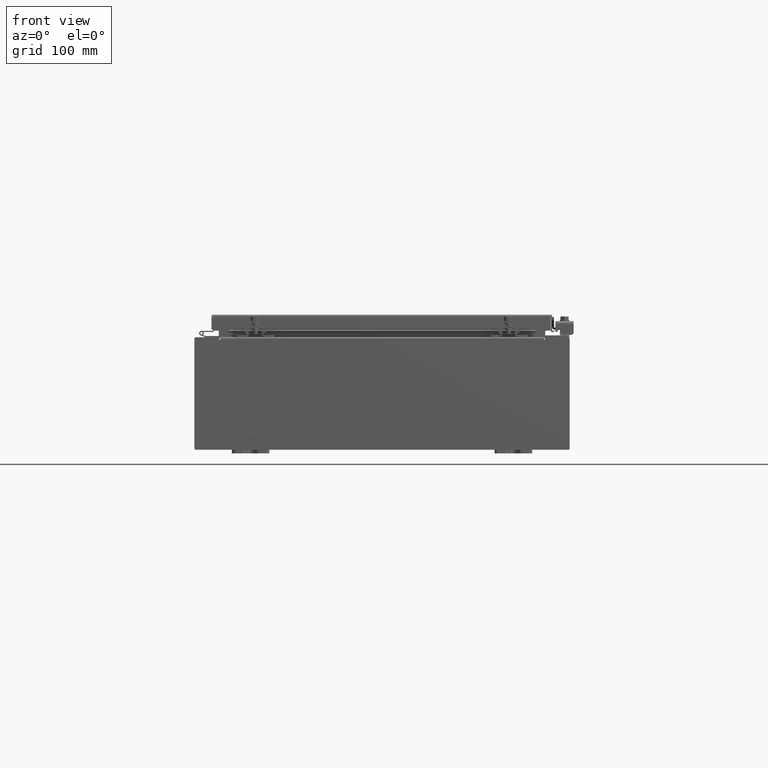
[diagram: clean part render]
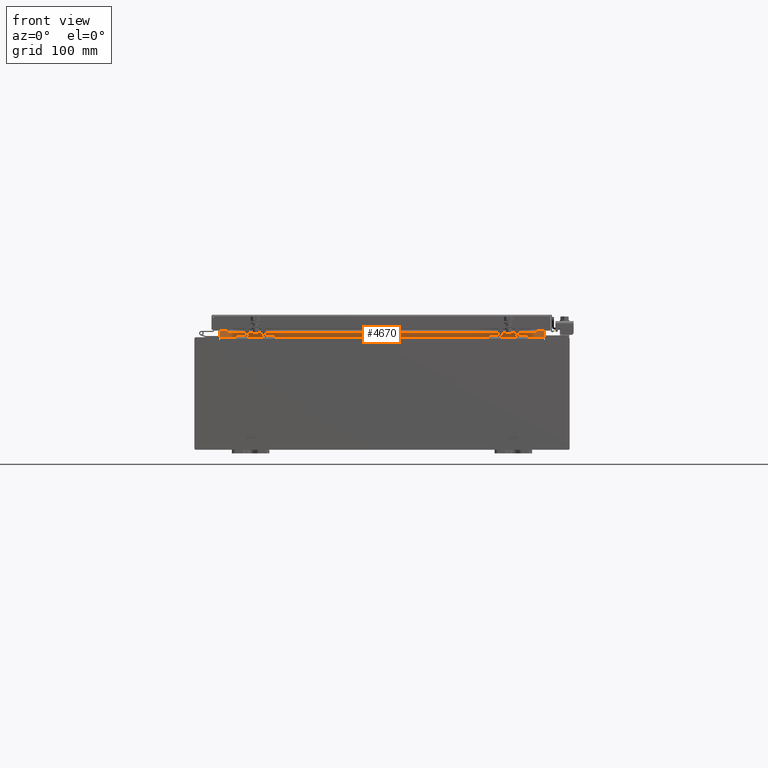
[diagram: same view with one face highlighted and labeled with its STEP entity id]
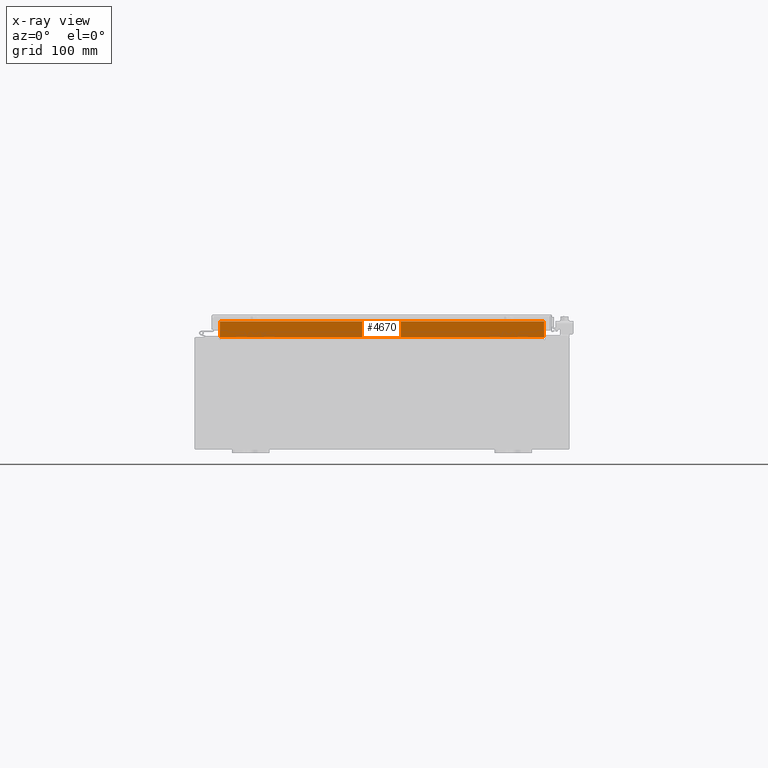
[diagram: x-ray of the same camera — body ghosted, the highlighted face saturated]
A machine part, front view. The second image highlights one B-rep face of the part: STEP entity #4670.
The next image is the same camera in x-ray: the body ghosted, the highlighted face saturated — about 0% of this face is hidden behind the body in this view.
In plain terms, the highlighted planar face has unit normal (-0, -1, 0).
Its self-contained STEP definition (entity closure, byte-faithful):
#3388 = ORIENTED_EDGE ( 'NONE', *, *, #29697, .F. ) ;
#4243 = ORIENTED_EDGE ( 'NONE', *, *, #17966, .F. ) ;
#4633 = CARTESIAN_POINT ( 'NONE',  ( 8.637200000000000000, -1.300299999999999300, 3.925300000000012000 ) ) ;
#4670 = ADVANCED_FACE ( 'NONE', ( #10577 ), #34008, .T. ) ;
#6360 = CARTESIAN_POINT ( 'NONE',  ( -8.637200000000007100, -1.300299999999999300, 3.012999999999998600 ) ) ;
#7149 = VECTOR ( 'NONE', #22560, 39.37007874015748100 ) ;
#7621 = DIRECTION ( 'NONE',  ( 9.992007221626408900E-016, -2.013110121372521300E-016, 1.000000000000000000 ) ) ;
#9976 = VECTOR ( 'NONE', #14430, 39.37007874015748100 ) ;
#10440 = CARTESIAN_POINT ( 'NONE',  ( 8.637199999999991100, -1.300299999999999300, 3.013000000000011900 ) ) ;
#10577 = FACE_OUTER_BOUND ( 'NONE', #33695, .T. ) ;
#10583 = LINE ( 'NONE', #26292, #17422 ) ;
#11452 = EDGE_CURVE ( 'NONE', #21494, #14959, #15862, .T. ) ;
#13536 = CARTESIAN_POINT ( 'NONE',  ( -4.194595811711970300E-016, -1.300299999999999300, 0.0000000000000000000 ) ) ;
#14430 = DIRECTION ( 'NONE',  ( -1.000000000000000000, -3.225867722578232700E-016, -9.992007221626408900E-016 ) ) ;
#14959 = VERTEX_POINT ( 'NONE', #6360 ) ;
#15862 = LINE ( 'NONE', #37256, #7149 ) ;
#17422 = VECTOR ( 'NONE', #29230, 39.37007874015748100 ) ;
#17604 = VERTEX_POINT ( 'NONE', #33385 ) ;
#17966 = EDGE_CURVE ( 'NONE', #14959, #25466, #10583, .T. ) ;
#19397 = DIRECTION ( 'NONE',  ( 9.992007221626408900E-016, -2.013110121372521300E-016, 1.000000000000000000 ) ) ;
#21494 = VERTEX_POINT ( 'NONE', #34866 ) ;
#22560 = DIRECTION ( 'NONE',  ( -9.992007221626408900E-016, 2.013110121372521300E-016, -1.000000000000000000 ) ) ;
#23133 = EDGE_CURVE ( 'NONE', #25466, #17604, #26651, .T. ) ;
#25466 = VERTEX_POINT ( 'NONE', #10440 ) ;
#25742 = VECTOR ( 'NONE', #7621, 39.37007874015748100 ) ;
#26065 = CARTESIAN_POINT ( 'NONE',  ( 8.637200000000000000, -1.300299999999999300, 3.837600000000011700 ) ) ;
#26292 = CARTESIAN_POINT ( 'NONE',  ( -8.637200000000007100, -1.300299999999999300, 3.012999999999998600 ) ) ;
#26651 = LINE ( 'NONE', #4633, #25742 ) ;
#29230 = DIRECTION ( 'NONE',  ( 1.000000000000000000, 3.225867722578232700E-016, 9.359429998993088400E-016 ) ) ;
#29697 = EDGE_CURVE ( 'NONE', #17604, #21494, #33352, .T. ) ;
#31393 = ORIENTED_EDGE ( 'NONE', *, *, #23133, .F. ) ;
#32921 = ORIENTED_EDGE ( 'NONE', *, *, #11452, .F. ) ;
#33352 = LINE ( 'NONE', #26065, #9976 ) ;
#33385 = CARTESIAN_POINT ( 'NONE',  ( 8.637200000000000000, -1.300299999999999300, 3.837600000000011700 ) ) ;
#33695 = EDGE_LOOP ( 'NONE', ( #32921, #3388, #31393, #4243 ) ) ;
#34008 = PLANE ( 'NONE',  #37524 ) ;
#34866 = CARTESIAN_POINT ( 'NONE',  ( -8.637200000000000000, -1.300299999999999300, 3.837599999999998300 ) ) ;
#36937 = DIRECTION ( 'NONE',  ( 3.225867722578236700E-016, 1.000000000000000000, 2.013110121372518100E-016 ) ) ;
#37256 = CARTESIAN_POINT ( 'NONE',  ( -8.637200000000007100, -1.300299999999999300, 2.999999999999998700 ) ) ;
#37524 = AXIS2_PLACEMENT_3D ( 'NONE', #13536, #36937, #19397 ) ;